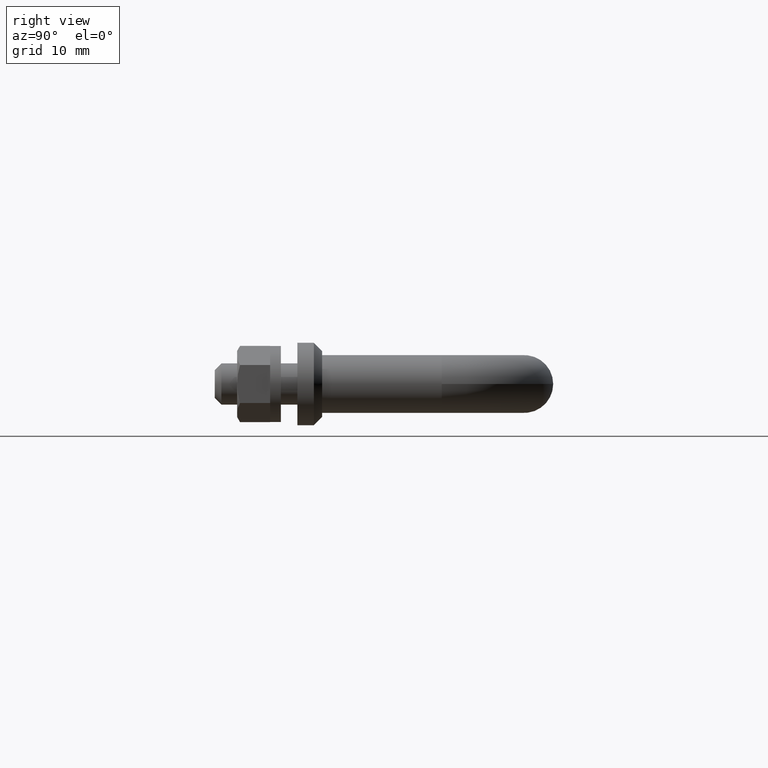
[diagram: clean part render]
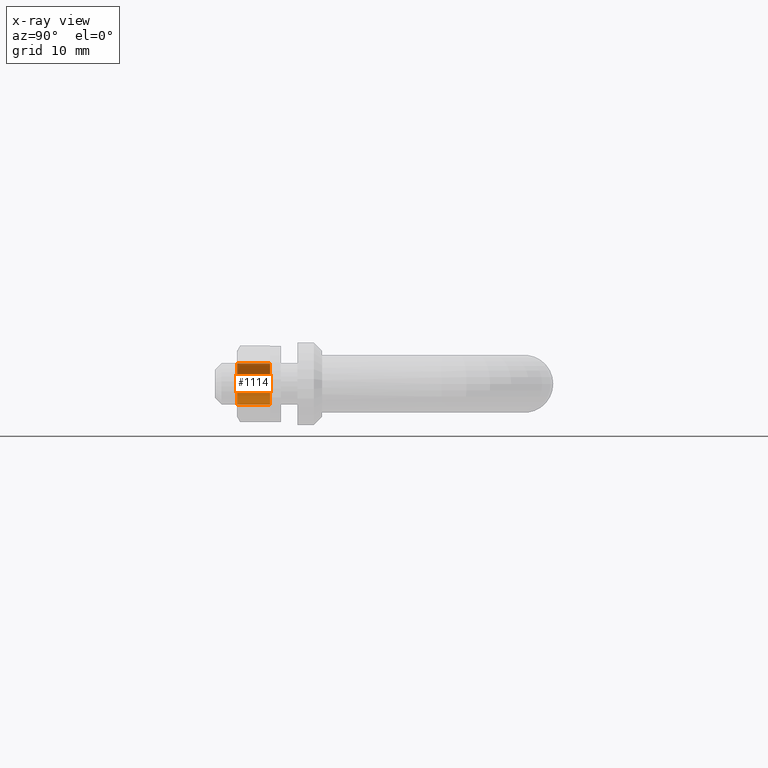
[diagram: x-ray — body ghosted, one internal face saturated and labeled with its STEP entity id]
A machine part, right view, then the same camera in x-ray: the body is ghosted and one INTERNAL B-rep face — a face not visible from any outside direction — is saturated and labeled: STEP entity #1114.
In plain terms, the highlighted cylindrical surface (edge-blend (fillet) strip) has radius 2.5 mm, axis along (0, 1, 0).
Its self-contained STEP definition (entity closure, byte-faithful):
#6 = AXIS2_PLACEMENT_3D ( 'NONE', #230, #1074, #651 ) ;
#78 = CARTESIAN_POINT ( 'NONE',  ( 0.0000000000000000000, 4.299999999999999800, 0.0000000000000000000 ) ) ;
#95 = DIRECTION ( 'NONE',  ( 0.0000000000000000000, 0.0000000000000000000, 1.000000000000000000 ) ) ;
#225 = VERTEX_POINT ( 'NONE', #1136 ) ;
#227 = VERTEX_POINT ( 'NONE', #311 ) ;
#229 = DIRECTION ( 'NONE',  ( 0.0000000000000000000, 0.0000000000000000000, 1.000000000000000000 ) ) ;
#230 = CARTESIAN_POINT ( 'NONE',  ( 0.0000000000000000000, 1004.300000000000000, 0.0000000000000000000 ) ) ;
#238 = VECTOR ( 'NONE', #439, 1000.000000000000000 ) ;
#278 = CIRCLE ( 'NONE', #1135, 2.500000000000000000 ) ;
#311 = CARTESIAN_POINT ( 'NONE',  ( 0.0000000000000000000, 8.300000000000000700, -2.500000000000000000 ) ) ;
#439 = DIRECTION ( 'NONE',  ( 0.0000000000000000000, -1.000000000000000000, 0.0000000000000000000 ) ) ;
#476 = EDGE_CURVE ( 'NONE', #225, #751, #596, .T. ) ;
#509 = ORIENTED_EDGE ( 'NONE', *, *, #476, .T. ) ;
#532 = ORIENTED_EDGE ( 'NONE', *, *, #1354, .F. ) ;
#586 = CARTESIAN_POINT ( 'NONE',  ( 3.061616997868383100E-016, 1004.300000000000000, 2.500000000000000000 ) ) ;
#596 = LINE ( 'NONE', #586, #238 ) ;
#651 = DIRECTION ( 'NONE',  ( 0.0000000000000000000, 0.0000000000000000000, -1.000000000000000000 ) ) ;
#751 = VERTEX_POINT ( 'NONE', #1262 ) ;
#799 = ORIENTED_EDGE ( 'NONE', *, *, #1495, .F. ) ;
#814 = VERTEX_POINT ( 'NONE', #1167 ) ;
#823 = CIRCLE ( 'NONE', #1494, 2.500000000000000000 ) ;
#849 = ORIENTED_EDGE ( 'NONE', *, *, #1041, .T. ) ;
#935 = DIRECTION ( 'NONE',  ( -0.0000000000000000000, -1.000000000000000000, -0.0000000000000000000 ) ) ;
#1041 = EDGE_CURVE ( 'NONE', #751, #814, #278, .T. ) ;
#1061 = DIRECTION ( 'NONE',  ( -0.0000000000000000000, -1.000000000000000000, -0.0000000000000000000 ) ) ;
#1069 = DIRECTION ( 'NONE',  ( 0.0000000000000000000, -1.000000000000000000, 0.0000000000000000000 ) ) ;
#1074 = DIRECTION ( 'NONE',  ( 0.0000000000000000000, -1.000000000000000000, 0.0000000000000000000 ) ) ;
#1092 = FACE_OUTER_BOUND ( 'NONE', #1234, .T. ) ;
#1114 = ADVANCED_FACE ( 'NONE', ( #1092 ), #1399, .F. ) ;
#1135 = AXIS2_PLACEMENT_3D ( 'NONE', #78, #1061, #229 ) ;
#1136 = CARTESIAN_POINT ( 'NONE',  ( 3.061616997868383100E-016, 8.300000000000000700, 2.500000000000000000 ) ) ;
#1167 = CARTESIAN_POINT ( 'NONE',  ( 0.0000000000000000000, 4.299999999999999800, -2.500000000000000000 ) ) ;
#1234 = EDGE_LOOP ( 'NONE', ( #532, #509, #849, #799 ) ) ;
#1262 = CARTESIAN_POINT ( 'NONE',  ( 3.061616997868383100E-016, 4.299999999999999800, 2.500000000000000000 ) ) ;
#1342 = LINE ( 'NONE', #1472, #1698 ) ;
#1354 = EDGE_CURVE ( 'NONE', #225, #227, #823, .T. ) ;
#1399 = CYLINDRICAL_SURFACE ( 'NONE', #6, 2.500000000000000000 ) ;
#1472 = CARTESIAN_POINT ( 'NONE',  ( 0.0000000000000000000, 1004.300000000000000, -2.500000000000000000 ) ) ;
#1494 = AXIS2_PLACEMENT_3D ( 'NONE', #1768, #935, #95 ) ;
#1495 = EDGE_CURVE ( 'NONE', #227, #814, #1342, .T. ) ;
#1698 = VECTOR ( 'NONE', #1069, 1000.000000000000000 ) ;
#1768 = CARTESIAN_POINT ( 'NONE',  ( 0.0000000000000000000, 8.300000000000000700, 0.0000000000000000000 ) ) ;